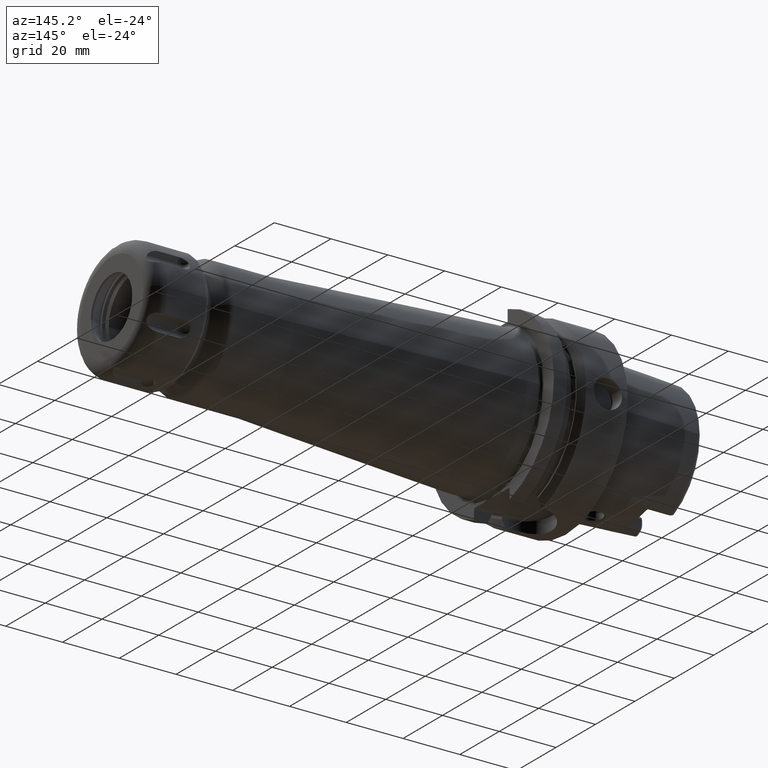
[diagram: clean part render]
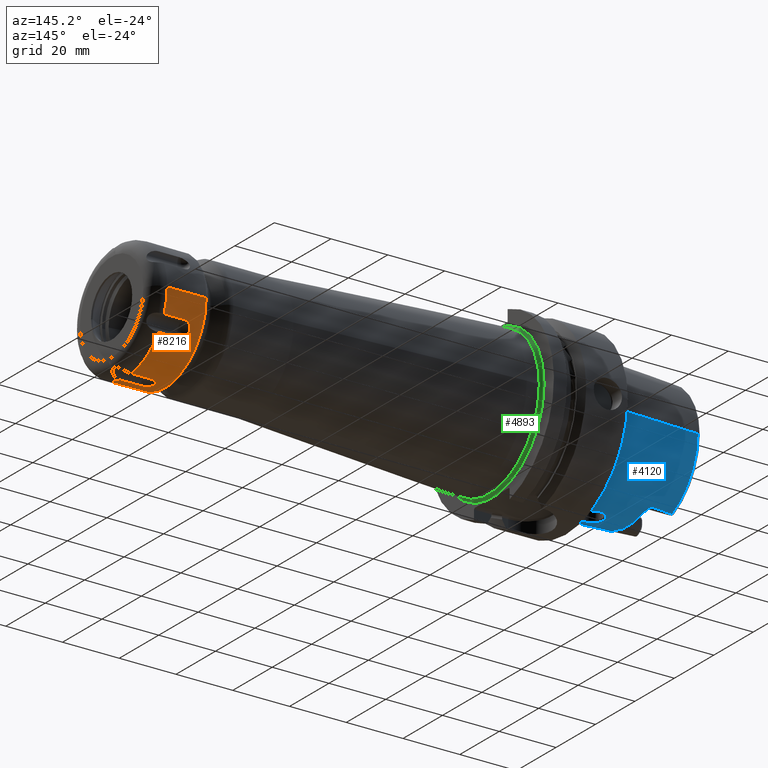
[diagram: same view with three faces highlighted in distinct colors, each labeled with its STEP entity id]
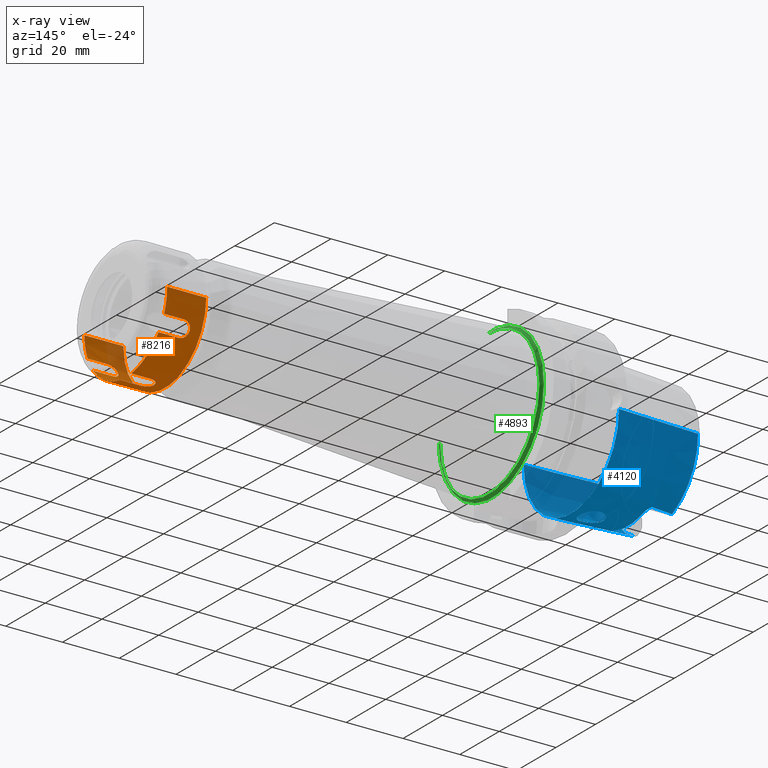
[diagram: x-ray of the same camera — body ghosted, the three highlighted faces saturated]
A machine part, auxiliary view with three faces highlighted in distinct colors.
The next image is the same camera in x-ray (body ghosted, the three faces saturated) — at least one of them is partly hidden behind the body in this view.
Their STEP definitions:

[orange] entity #8216 — the highlighted cylindrical surface (partial cylindrical patch) has radius 21 mm, axis along (-1, 0, 0).
#6834=CARTESIAN_POINT('',(1.25E0,0.E0,0.E0));
#6835=DIRECTION('',(-1.E0,0.E0,0.E0));
#6836=DIRECTION('',(0.E0,1.E0,0.E0));
#6837=AXIS2_PLACEMENT_3D('',#6834,#6835,#6836);
#6867=DIRECTION('',(-1.E0,0.E0,0.E0));
#6868=VECTOR('',#6867,1.375E1);
#6869=CARTESIAN_POINT('',(1.5E1,-2.1E1,0.E0));
#6870=LINE('',#6869,#6868);
#6871=DIRECTION('',(-1.E0,0.E0,0.E0));
#6872=VECTOR('',#6871,1.375E1);
#6873=CARTESIAN_POINT('',(1.5E1,2.1E1,0.E0));
#6874=LINE('',#6873,#6872);
#7050=DIRECTION('',(-1.E0,0.E0,0.E0));
#7051=VECTOR('',#7050,7.E0);
#7052=CARTESIAN_POINT('',(1.5E1,-1.941540806421E1,-8.002620177191E0));
#7053=LINE('',#7052,#7051);
#7054=DIRECTION('',(-1.E0,0.E0,0.E0));
#7055=VECTOR('',#7054,7.E0);
#7056=CARTESIAN_POINT('',(1.5E1,-1.663817640239E1,-1.281292651985E1));
#7057=LINE('',#7056,#7055);
#7058=CARTESIAN_POINT('',(1.5E1,0.E0,0.E0));
#7059=DIRECTION('',(-1.E0,0.E0,0.E0));
#7060=DIRECTION('',(0.E0,-1.322491267532E-1,-9.912165093828E-1));
#7061=AXIS2_PLACEMENT_3D('',#7058,#7059,#7060);
#7063=DIRECTION('',(-1.E0,0.E0,0.E0));
#7064=VECTOR('',#7063,7.E0);
#7065=CARTESIAN_POINT('',(1.5E1,-2.777231661817E0,-2.081554669704E1));
#7066=LINE('',#7065,#7064);
#7067=DIRECTION('',(-1.E0,0.E0,0.E0));
#7068=VECTOR('',#7067,7.E0);
#7069=CARTESIAN_POINT('',(1.5E1,2.777231661817E0,-2.081554669704E1));
#7070=LINE('',#7069,#7068);
#7071=CARTESIAN_POINT('',(1.5E1,0.E0,0.E0));
#7072=DIRECTION('',(-1.E0,0.E0,0.E0));
#7073=DIRECTION('',(0.E0,7.922941143994E-1,-6.101393580880E-1));
#7074=AXIS2_PLACEMENT_3D('',#7071,#7072,#7073);
#7076=DIRECTION('',(-1.E0,0.E0,0.E0));
#7077=VECTOR('',#7076,7.E0);
#7078=CARTESIAN_POINT('',(1.5E1,1.663817640239E1,-1.281292651985E1));
#7079=LINE('',#7078,#7077);
#7080=DIRECTION('',(-1.E0,0.E0,0.E0));
#7081=VECTOR('',#7080,7.E0);
#7082=CARTESIAN_POINT('',(1.5E1,1.941540806421E1,-8.002620177191E0));
#7083=LINE('',#7082,#7081);
#7084=CARTESIAN_POINT('',(1.5E1,0.E0,0.E0));
#7085=DIRECTION('',(-1.E0,0.E0,0.E0));
#7086=DIRECTION('',(0.E0,1.E0,0.E0));
#7087=AXIS2_PLACEMENT_3D('',#7084,#7085,#7086);
#7089=CARTESIAN_POINT('',(1.5E1,0.E0,0.E0));
#7090=DIRECTION('',(-1.E0,0.E0,0.E0));
#7091=DIRECTION('',(0.E0,-9.245432411526E-1,-3.810771512948E-1));
#7092=AXIS2_PLACEMENT_3D('',#7089,#7090,#7091);
#7099=CARTESIAN_POINT('',(8.E0,-1.663817640239E1,-1.281292651985E1));
#7100=CARTESIAN_POINT('',(7.714583305605E0,-1.663817640239E1,
-1.281292651985E1));
#7101=CARTESIAN_POINT('',(7.192143563434E0,-1.668830297763E1,
-1.274810774210E1));
#7102=CARTESIAN_POINT('',(6.546807345939E0,-1.685742201408E1,
-1.252453094965E1));
#7103=CARTESIAN_POINT('',(6.054802938562E0,-1.707273175939E1,
-1.222998054114E1));
#7104=CARTESIAN_POINT('',(5.693341448146E0,-1.730396217612E1,
-1.190078479590E1));
#7105=CARTESIAN_POINT('',(5.442477499872E0,-1.753199674627E1,
-1.156217247130E1));
#7106=CARTESIAN_POINT('',(5.280954622590E0,-1.774644318742E1,
-1.122995874814E1));
#7107=CARTESIAN_POINT('',(5.192134284114E0,-1.793586716112E1,
-1.092439610791E1));
#7108=CARTESIAN_POINT('',(5.152681426050E0,-1.810379712254E1,
-1.064374469399E1));
#7109=CARTESIAN_POINT('',(5.153099055368E0,-1.827316404767E1,
-1.035028364925E1));
#7110=CARTESIAN_POINT('',(5.193548204491E0,-1.843241748974E1,
-1.006398228667E1));
#7111=CARTESIAN_POINT('',(5.283274229354E0,-1.860187386136E1,
-9.747731544451E0));
#7112=CARTESIAN_POINT('',(5.445580918541E0,-1.878179790701E1,
-9.396726830567E0));
#7113=CARTESIAN_POINT('',(5.696779314112E0,-1.896026994103E1,
-9.031252239954E0));
#7114=CARTESIAN_POINT('',(6.058171132220E0,-1.912904285901E1,
-8.667751895945E0));
#7115=CARTESIAN_POINT('',(6.549574774111E0,-1.927584277882E1,
-8.335354274192E0));
#7116=CARTESIAN_POINT('',(7.193612768876E0,-1.938444317983E1,
-8.078178130094E0));
#7117=CARTESIAN_POINT('',(7.715108165173E0,-1.941540806421E1,
-8.002620177191E0));
#7118=CARTESIAN_POINT('',(8.E0,-1.941540806421E1,-8.002620177191E0));
#7143=CARTESIAN_POINT('',(8.E0,2.777231661817E0,-2.081554669704E1));
#7144=CARTESIAN_POINT('',(7.713662407976E0,2.777231661817E0,-2.081554669704E1));
#7145=CARTESIAN_POINT('',(7.189909163737E0,2.695438478365E0,-2.082662722685E1));
#7146=CARTESIAN_POINT('',(6.545266369655E0,2.416933918441E0,-2.086132910695E1));
#7147=CARTESIAN_POINT('',(6.053188385415E0,2.053714854453E0,-2.090055057382E1));
#7148=CARTESIAN_POINT('',(5.691666812557E0,1.652236150032E0,-2.093623980800E1));
#7149=CARTESIAN_POINT('',(5.440921343617E0,1.244147798999E0,-2.096442280320E1));
#7150=CARTESIAN_POINT('',(5.279713784226E0,8.485345660924E-1,
-2.098400447999E1));
#7151=CARTESIAN_POINT('',(5.191310865890E0,4.883589188883E-1,
-2.099522048576E1));
#7152=CARTESIAN_POINT('',(5.152463857373E0,1.619241904040E-1,
-2.100024895100E1));
#7153=CARTESIAN_POINT('',(5.153352970432E0,-1.769125356115E-1,
-2.100013304002E1));
#7154=CARTESIAN_POINT('',(5.194242567044E0,-5.042908363847E-1,
-2.099484367307E1));
#7155=CARTESIAN_POINT('',(5.284599976748E0,-8.631977389131E-1,
-2.098339584655E1));
#7156=CARTESIAN_POINT('',(5.447533241111E0,-1.256871962063E0,
-2.096364849057E1));
#7157=CARTESIAN_POINT('',(5.699249222549E0,-1.662072581669E0,
-2.093544078779E1));
#7158=CARTESIAN_POINT('',(6.060877722500E0,-2.060407693505E0,
-2.089987254220E1));
#7159=CARTESIAN_POINT('',(6.552100609835E0,-2.420624148758E0,
-2.086088616490E1));
#7160=CARTESIAN_POINT('',(7.194942937973E0,-2.696562424964E0,
-2.082647454950E1));
#7161=CARTESIAN_POINT('',(7.715594987669E0,-2.777231661817E0,
-2.081554669704E1));
#7162=CARTESIAN_POINT('',(8.E0,-2.777231661817E0,-2.081554669704E1));
#7187=CARTESIAN_POINT('',(8.E0,1.941540806421E1,-8.002620177191E0));
#7188=CARTESIAN_POINT('',(7.713572922658E0,1.941540806421E1,-8.002620177191E0));
#7189=CARTESIAN_POINT('',(7.189666296858E0,1.938409112840E1,-8.079036053747E0));
#7190=CARTESIAN_POINT('',(6.544777832993E0,1.927480496396E1,-8.337779258824E0));
#7191=CARTESIAN_POINT('',(6.052712802278E0,1.912708846113E1,-8.672097759418E0));
#7192=CARTESIAN_POINT('',(5.691284416322E0,1.895721237694E1,-9.037706050068E0));
#7193=CARTESIAN_POINT('',(5.440670364586E0,1.877756964477E1,-9.405200319201E0));
#7194=CARTESIAN_POINT('',(5.279587362947E0,1.859675418770E1,-9.757517579175E0));
#7195=CARTESIAN_POINT('',(5.191276123419E0,1.842646227369E1,-1.007488110629E1));
#7196=CARTESIAN_POINT('',(5.152462673233E0,1.826765771439E1,-1.035998691209E1));
#7197=CARTESIAN_POINT('',(5.153355632364E0,1.809820878830E1,-1.065324823959E1));
#7198=CARTESIAN_POINT('',(5.194221992970E0,1.792999806580E1,-1.093402505740E1));
#7199=CARTESIAN_POINT('',(5.284498191224E0,1.774073299543E1,-1.123896635518E1));
#7200=CARTESIAN_POINT('',(5.447317801761E0,1.752685369365E1,-1.156994667318E1));
#7201=CARTESIAN_POINT('',(5.698894094622E0,1.729986084275E1,-1.190671983321E1));
#7202=CARTESIAN_POINT('',(6.060385032134E0,1.706987180093E1,-1.223394697615E1));
#7203=CARTESIAN_POINT('',(6.551605632999E0,1.685591873376E1,-1.252653286965E1));
#7204=CARTESIAN_POINT('',(7.194289469945E0,1.668807982404E1,-1.274839234248E1));
#7205=CARTESIAN_POINT('',(7.715326436797E0,1.663817640239E1,-1.281292651985E1));
#7206=CARTESIAN_POINT('',(8.E0,1.663817640239E1,-1.281292651985E1));
#7819=CARTESIAN_POINT('',(1.25E0,2.1E1,0.E0));
#7821=VERTEX_POINT('',#7819);
#7824=CARTESIAN_POINT('',(1.5E1,2.1E1,0.E0));
#7826=VERTEX_POINT('',#7824);
#7827=CARTESIAN_POINT('',(1.25E0,-2.1E1,0.E0));
#7829=VERTEX_POINT('',#7827);
#7832=CARTESIAN_POINT('',(1.5E1,-2.1E1,0.E0));
#7834=VERTEX_POINT('',#7832);
#7835=CARTESIAN_POINT('',(1.5E1,-2.777231661817E0,-2.081554669704E1));
#7836=CARTESIAN_POINT('',(8.E0,-2.777231661817E0,-2.081554669704E1));
#7837=VERTEX_POINT('',#7835);
#7838=VERTEX_POINT('',#7836);
#7839=CARTESIAN_POINT('',(1.5E1,2.777231661817E0,-2.081554669704E1));
#7840=CARTESIAN_POINT('',(8.E0,2.777231661817E0,-2.081554669704E1));
#7841=VERTEX_POINT('',#7839);
#7842=VERTEX_POINT('',#7840);
#7843=CARTESIAN_POINT('',(1.5E1,1.663817640239E1,-1.281292651985E1));
#7844=CARTESIAN_POINT('',(8.E0,1.663817640239E1,-1.281292651985E1));
#7845=VERTEX_POINT('',#7843);
#7846=VERTEX_POINT('',#7844);
#7847=CARTESIAN_POINT('',(1.5E1,1.941540806421E1,-8.002620177191E0));
#7848=CARTESIAN_POINT('',(8.E0,1.941540806421E1,-8.002620177191E0));
#7849=VERTEX_POINT('',#7847);
#7850=VERTEX_POINT('',#7848);
#7875=CARTESIAN_POINT('',(1.5E1,-1.941540806421E1,-8.002620177191E0));
#7876=CARTESIAN_POINT('',(8.E0,-1.941540806421E1,-8.002620177191E0));
#7877=VERTEX_POINT('',#7875);
#7878=VERTEX_POINT('',#7876);
#7879=CARTESIAN_POINT('',(1.5E1,-1.663817640239E1,-1.281292651985E1));
#7880=CARTESIAN_POINT('',(8.E0,-1.663817640239E1,-1.281292651985E1));
#7881=VERTEX_POINT('',#7879);
#7882=VERTEX_POINT('',#7880);
#8186=CARTESIAN_POINT('',(2.1E1,0.E0,0.E0));
#8187=DIRECTION('',(-1.E0,0.E0,0.E0));
#8188=DIRECTION('',(0.E0,1.E0,0.E0));
#8189=AXIS2_PLACEMENT_3D('',#8186,#8187,#8188);
#8190=CYLINDRICAL_SURFACE('',#8189,2.1E1);
#8191=ORIENTED_EDGE('',*,*,#8181,.T.);
#8193=ORIENTED_EDGE('',*,*,#8192,.F.);
#8194=ORIENTED_EDGE('',*,*,#8177,.F.);
#8195=ORIENTED_EDGE('',*,*,#8166,.F.);
#8197=ORIENTED_EDGE('',*,*,#8196,.T.);
#8199=ORIENTED_EDGE('',*,*,#8198,.F.);
#8201=ORIENTED_EDGE('',*,*,#8200,.F.);
#8202=ORIENTED_EDGE('',*,*,#8162,.F.);
#8204=ORIENTED_EDGE('',*,*,#8203,.T.);
#8206=ORIENTED_EDGE('',*,*,#8205,.F.);
#8208=ORIENTED_EDGE('',*,*,#8207,.F.);
#8209=ORIENTED_EDGE('',*,*,#8158,.F.);
#8210=ORIENTED_EDGE('',*,*,#8039,.T.);
#8211=ORIENTED_EDGE('',*,*,#8004,.T.);
#8212=ORIENTED_EDGE('',*,*,#8036,.F.);
#8213=ORIENTED_EDGE('',*,*,#8152,.F.);
#8214=EDGE_LOOP('',(#8191,#8193,#8194,#8195,#8197,#8199,#8201,#8202,#8204,#8206,
#8208,#8209,#8210,#8211,#8212,#8213));
#8215=FACE_OUTER_BOUND('',#8214,.F.);
#8216=ADVANCED_FACE('',(#8215),#8190,.T.);
#6838=CIRCLE('',#6837,2.1E1);
#7062=CIRCLE('',#7061,2.1E1);
#7075=CIRCLE('',#7074,2.1E1);
#7088=CIRCLE('',#7087,2.1E1);
#7093=CIRCLE('',#7092,2.1E1);
#7119=B_SPLINE_CURVE_WITH_KNOTS('',3,(#7099,#7100,#7101,#7102,#7103,#7104,#7105,
#7106,#7107,#7108,#7109,#7110,#7111,#7112,#7113,#7114,#7115,#7116,#7117,#7118),
.UNSPECIFIED.,.F.,.F.,(4,1,1,1,1,1,1,1,1,1,1,1,1,1,1,1,1,4),(0.E0,
5.882352941176E-2,1.176470588235E-1,1.764705882353E-1,2.352941176471E-1,
2.941176470588E-1,3.529411764706E-1,4.117647058824E-1,4.705882352941E-1,
5.294117647059E-1,5.882352941176E-1,6.470588235294E-1,7.058823529412E-1,
7.647058823529E-1,8.235294117647E-1,8.823529411765E-1,9.411764705882E-1,1.E0),
.UNSPECIFIED.);
#7163=B_SPLINE_CURVE_WITH_KNOTS('',3,(#7143,#7144,#7145,#7146,#7147,#7148,#7149,
#7150,#7151,#7152,#7153,#7154,#7155,#7156,#7157,#7158,#7159,#7160,#7161,#7162),
.UNSPECIFIED.,.F.,.F.,(4,1,1,1,1,1,1,1,1,1,1,1,1,1,1,1,1,4),(0.E0,
5.882352941176E-2,1.176470588235E-1,1.764705882353E-1,2.352941176471E-1,
2.941176470588E-1,3.529411764706E-1,4.117647058824E-1,4.705882352941E-1,
5.294117647059E-1,5.882352941176E-1,6.470588235294E-1,7.058823529412E-1,
7.647058823529E-1,8.235294117647E-1,8.823529411765E-1,9.411764705882E-1,1.E0),
.UNSPECIFIED.);
#7207=B_SPLINE_CURVE_WITH_KNOTS('',3,(#7187,#7188,#7189,#7190,#7191,#7192,#7193,
#7194,#7195,#7196,#7197,#7198,#7199,#7200,#7201,#7202,#7203,#7204,#7205,#7206),
.UNSPECIFIED.,.F.,.F.,(4,1,1,1,1,1,1,1,1,1,1,1,1,1,1,1,1,4),(0.E0,
5.882352941176E-2,1.176470588235E-1,1.764705882353E-1,2.352941176471E-1,
2.941176470588E-1,3.529411764706E-1,4.117647058824E-1,4.705882352941E-1,
5.294117647059E-1,5.882352941176E-1,6.470588235294E-1,7.058823529412E-1,
7.647058823529E-1,8.235294117647E-1,8.823529411765E-1,9.411764705882E-1,1.E0),
.UNSPECIFIED.);
#8004=EDGE_CURVE('',#7821,#7829,#6838,.T.);
#8036=EDGE_CURVE('',#7834,#7829,#6870,.T.);
#8039=EDGE_CURVE('',#7826,#7821,#6874,.T.);
#8152=EDGE_CURVE('',#7877,#7834,#7093,.T.);
#8158=EDGE_CURVE('',#7826,#7849,#7088,.T.);
#8162=EDGE_CURVE('',#7845,#7841,#7075,.T.);
#8166=EDGE_CURVE('',#7837,#7881,#7062,.T.);
#8177=EDGE_CURVE('',#7881,#7882,#7057,.T.);
#8181=EDGE_CURVE('',#7877,#7878,#7053,.T.);
#8192=EDGE_CURVE('',#7882,#7878,#7119,.T.);
#8196=EDGE_CURVE('',#7837,#7838,#7066,.T.);
#8198=EDGE_CURVE('',#7842,#7838,#7163,.T.);
#8200=EDGE_CURVE('',#7841,#7842,#7070,.T.);
#8203=EDGE_CURVE('',#7845,#7846,#7079,.T.);
#8205=EDGE_CURVE('',#7850,#7846,#7207,.T.);
#8207=EDGE_CURVE('',#7849,#7850,#7083,.T.);

[blue] entity #4120 — the highlighted conical surface has half-angle 2.868 deg.
#172=CARTESIAN_POINT('',(-3.086004306431E1,9.562027931336E0,-2.067E1));
#180=CARTESIAN_POINT('',(-3.086004306431E1,0.E0,0.E0));
#181=DIRECTION('',(-1.E0,0.E0,0.E0));
#182=DIRECTION('',(0.E0,1.E0,0.E0));
#183=AXIS2_PLACEMENT_3D('',#180,#181,#182);
#266=CARTESIAN_POINT('',(-3.086004306431E1,0.E0,0.E0));
#267=DIRECTION('',(-1.E0,0.E0,0.E0));
#268=DIRECTION('',(0.E0,-4.198553792210E-1,-9.075910205259E-1));
#269=AXIS2_PLACEMENT_3D('',#266,#267,#268);
#715=CARTESIAN_POINT('',(-2.35E1,-1.040978349090E1,-2.067E1));
#716=CARTESIAN_POINT('',(-2.344355022851E1,-1.041607090076E1,-2.067E1));
#717=CARTESIAN_POINT('',(-2.332956993861E1,-1.041630964332E1,
-2.067627649687E1));
#718=CARTESIAN_POINT('',(-2.315431779142E1,-1.037517685704E1,
-2.070680447798E1));
#719=CARTESIAN_POINT('',(-2.298610382819E1,-1.029332142770E1,
-2.075709446100E1));
#720=CARTESIAN_POINT('',(-2.282168004898E1,-1.016791062235E1,
-2.082809580409E1));
#721=CARTESIAN_POINT('',(-2.266724538325E1,-9.999284585470E0,
-2.091827708343E1));
#722=CARTESIAN_POINT('',(-2.252949651780E1,-9.795860386621E0,
-2.102205159226E1));
#723=CARTESIAN_POINT('',(-2.240609239614E1,-9.556317791147E0,
-2.113897791639E1));
#724=CARTESIAN_POINT('',(-2.233295118151E1,-9.369771312934E0,
-2.122596447282E1));
#725=CARTESIAN_POINT('',(-2.229902715702E1,-9.27E0,-2.127129858661E1));
#732=CARTESIAN_POINT('',(-2.229902715702E1,-9.27E0,-2.127129858661E1));
#733=CARTESIAN_POINT('',(-2.223399395074E1,-9.078735889296E0,
-2.135820522042E1));
#734=CARTESIAN_POINT('',(-2.212138063131E1,-8.709703982970E0,
-2.151897497246E1));
#735=CARTESIAN_POINT('',(-2.202143095510E1,-8.195867731278E0,
-2.172483116732E1));
#736=CARTESIAN_POINT('',(-2.2E1,-7.876905772307E0,-2.184209600703E1));
#737=CARTESIAN_POINT('',(-2.2E1,-7.723914364163E0,-2.189606426911E1));
#744=CARTESIAN_POINT('',(-3.086004306431E1,9.562027931336E0,-2.067E1));
#745=CARTESIAN_POINT('',(-3.006933576531E1,9.656377942908E0,-2.067E1));
#746=CARTESIAN_POINT('',(-2.846987211493E1,9.844931102331E0,-2.067E1));
#747=CARTESIAN_POINT('',(-2.601704943476E1,1.012739619931E1,-2.067E1));
#748=CARTESIAN_POINT('',(-2.434508424921E1,1.031565749353E1,-2.067E1));
#749=CARTESIAN_POINT('',(-2.35E1,1.040978349090E1,-2.067E1));
#751=CARTESIAN_POINT('',(-2.2E1,0.E0,0.E0));
#752=DIRECTION('',(1.E0,0.E0,0.E0));
#753=DIRECTION('',(0.E0,-3.326627708379E-1,-9.430458530201E-1));
#754=AXIS2_PLACEMENT_3D('',#751,#752,#753);
#756=CARTESIAN_POINT('',(-2.35E1,-1.040978349090E1,-2.067E1));
#757=CARTESIAN_POINT('',(-2.434499363207E1,-1.031566758652E1,-2.067E1));
#758=CARTESIAN_POINT('',(-2.601683809497E1,-1.012742018211E1,-2.067E1));
#759=CARTESIAN_POINT('',(-2.846966522954E1,-9.844955281726E0,-2.067E1));
#760=CARTESIAN_POINT('',(-3.006924714753E1,-9.656388517097E0,-2.067E1));
#761=CARTESIAN_POINT('',(-3.086004306431E1,-9.562027931336E0,-2.067E1));
#763=DIRECTION('',(-9.987474205320E-1,5.003588692862E-2,0.E0));
#764=VECTOR('',#763,2.889623789861E1);
#765=CARTESIAN_POINT('',(-2.E0,-2.422042414966E1,0.E0));
#766=LINE('',#765,#764);
#767=CARTESIAN_POINT('',(-2.E0,0.E0,0.E0));
#768=DIRECTION('',(1.E0,0.E0,0.E0));
#769=DIRECTION('',(0.E0,-1.E0,0.E0));
#770=AXIS2_PLACEMENT_3D('',#767,#768,#769);
#772=DIRECTION('',(-9.987474205320E-1,-5.003588692862E-2,0.E0));
#773=VECTOR('',#772,2.889623789861E1);
#774=CARTESIAN_POINT('',(-2.E0,2.422042414966E1,0.E0));
#775=LINE('',#774,#773);
#776=CARTESIAN_POINT('',(-4.750586214018E0,5.673461659763E-9,
-2.408258339423E1));
#777=CARTESIAN_POINT('',(-4.750477437961E0,2.111411076152E-1,
-2.408258884376E1));
#778=CARTESIAN_POINT('',(-4.781495656806E0,6.343409338442E-1,
-2.407562144168E1));
#779=CARTESIAN_POINT('',(-4.930078657106E0,1.283914855647E0,-2.404224907910E1));
#780=CARTESIAN_POINT('',(-5.182634392381E0,1.908800454949E0,-2.398769888200E1));
#781=CARTESIAN_POINT('',(-5.529831450162E0,2.484539069761E0,-2.391697022480E1));
#782=CARTESIAN_POINT('',(-5.960551469368E0,2.995586150016E0,-2.383614077825E1));
#783=CARTESIAN_POINT('',(-6.473793439058E0,3.438507792172E0,-2.374982588457E1));
#784=CARTESIAN_POINT('',(-7.048787066123E0,3.792204015972E0,-2.366626747645E1));
#785=CARTESIAN_POINT('',(-7.671452269175E0,4.050490920343E0,-2.359141310307E1));
#786=CARTESIAN_POINT('',(-8.326498075054E0,4.207389863949E0,-2.353035449331E1));
#787=CARTESIAN_POINT('',(-8.996688113385E0,4.259622037115E0,-2.348674331493E1));
#788=CARTESIAN_POINT('',(-9.664449704733E0,4.206963769363E0,-2.346231724919E1));
#789=CARTESIAN_POINT('',(-1.031524077611E1,4.051442761029E0,-2.345681057565E1));
#790=CARTESIAN_POINT('',(-1.093485325951E1,3.796098039719E0,-2.346839797168E1));
#791=CARTESIAN_POINT('',(-1.150677686976E1,3.447081430360E0,-2.349368587605E1));
#792=CARTESIAN_POINT('',(-1.201610511114E1,3.013688514077E0,-2.352797212386E1));
#793=CARTESIAN_POINT('',(-1.245275273991E1,2.504280742997E0,-2.356616658718E1));
#794=CARTESIAN_POINT('',(-1.280634613041E1,1.927107192660E0,-2.360307496745E1));
#795=CARTESIAN_POINT('',(-1.306351718265E1,1.301776136825E0,-2.363325793045E1));
#796=CARTESIAN_POINT('',(-1.321667495617E1,6.483699009348E-1,
-2.365261938940E1));
#797=CARTESIAN_POINT('',(-1.324953338827E1,2.167159282651E-1,
-2.365680321669E1));
#798=CARTESIAN_POINT('',(-1.324940828071E1,6.149879737228E-9,
-2.365680948441E1));
#800=CARTESIAN_POINT('',(-1.324940828071E1,6.149879737228E-9,
-2.365680948441E1));
#801=CARTESIAN_POINT('',(-1.324953102801E1,-2.137481481882E-1,
-2.365680333493E1));
#802=CARTESIAN_POINT('',(-1.321763433537E1,-6.412975014817E-1,
-2.365274945467E1));
#803=CARTESIAN_POINT('',(-1.306535183772E1,-1.296633810944E0,
-2.363348136753E1));
#804=CARTESIAN_POINT('',(-1.280777805154E1,-1.924231879999E0,
-2.360323471178E1));
#805=CARTESIAN_POINT('',(-1.245640925213E1,-2.498853587660E0,
-2.356653312143E1));
#806=CARTESIAN_POINT('',(-1.202279775894E1,-3.007095564138E0,
-2.352849478770E1));
#807=CARTESIAN_POINT('',(-1.151012912941E1,-3.444950000041E0,
-2.349384632376E1));
#808=CARTESIAN_POINT('',(-1.093833543731E1,-3.794219313343E0,
-2.346852201482E1));
#809=CARTESIAN_POINT('',(-1.031975853695E1,-4.049996047184E0,
-2.345683414568E1));
#810=CARTESIAN_POINT('',(-9.668027880621E0,-4.206485188960E0,
-2.346222186835E1));
#811=CARTESIAN_POINT('',(-8.998732245580E0,-4.259676561364E0,
-2.348662929012E1));
#812=CARTESIAN_POINT('',(-8.327946517995E0,-4.207637743620E0,
-2.353023608986E1));
#813=CARTESIAN_POINT('',(-7.672280726344E0,-4.050816496641E0,
-2.359131552533E1));
#814=CARTESIAN_POINT('',(-7.048298445734E0,-3.792045808672E0,
-2.366632099982E1));
#815=CARTESIAN_POINT('',(-6.472887987830E0,-3.437795786313E0,
-2.374997505426E1));
#816=CARTESIAN_POINT('',(-5.960766318899E0,-2.995689730409E0,
-2.383610614678E1));
#817=CARTESIAN_POINT('',(-5.531187494687E0,-2.486290041474E0,
-2.391671147691E1));
#818=CARTESIAN_POINT('',(-5.183401261358E0,-1.910526594455E0,
-2.398753185570E1));
#819=CARTESIAN_POINT('',(-4.929997199649E0,-1.284003067748E0,
-2.404226458263E1));
#820=CARTESIAN_POINT('',(-4.781340780308E0,-6.332209723674E-1,
-2.407566103624E1));
#821=CARTESIAN_POINT('',(-4.750402434471E0,-2.105981632370E-1,
-2.408259260134E1));
#822=CARTESIAN_POINT('',(-4.750586214018E0,5.673461659763E-9,
-2.408258339423E1));
#832=CARTESIAN_POINT('',(-2.229902715702E1,9.27E0,-2.127129858661E1));
#833=CARTESIAN_POINT('',(-2.233311157770E1,9.370243041714E0,-2.122575012858E1));
#834=CARTESIAN_POINT('',(-2.240658425841E1,9.557497215840E0,-2.113842140416E1));
#835=CARTESIAN_POINT('',(-2.253041527230E1,9.797438074146E0,-2.102126542838E1));
#836=CARTESIAN_POINT('',(-2.266830373788E1,1.000064778809E1,-2.091756656395E1));
#837=CARTESIAN_POINT('',(-2.282373330426E1,1.017005110462E1,-2.082694270310E1));
#838=CARTESIAN_POINT('',(-2.299261366970E1,1.029790438197E1,-2.075446014923E1));
#839=CARTESIAN_POINT('',(-2.316533457542E1,1.037882348161E1,-2.070435505978E1));
#840=CARTESIAN_POINT('',(-2.333269177476E1,1.041609135758E1,-2.067621009348E1));
#841=CARTESIAN_POINT('',(-2.344467268621E1,1.041594588074E1,-2.067E1));
#842=CARTESIAN_POINT('',(-2.35E1,1.040978349090E1,-2.067E1));
#844=CARTESIAN_POINT('',(-2.2E1,7.723914364163E0,-2.189606426911E1));
#845=CARTESIAN_POINT('',(-2.2E1,7.876901135824E0,-2.184209764257E1));
#846=CARTESIAN_POINT('',(-2.202143124879E1,8.195856320393E0,-2.172483505793E1));
#847=CARTESIAN_POINT('',(-2.212136508173E1,8.709641843939E0,-2.151900085185E1));
#848=CARTESIAN_POINT('',(-2.223398514363E1,9.078709987396E0,-2.135821698973E1));
#849=CARTESIAN_POINT('',(-2.229902715702E1,9.27E0,-2.127129858661E1));
#2803=CARTESIAN_POINT('',(-2.E0,2.422042414966E1,0.E0));
#2804=CARTESIAN_POINT('',(-2.E0,-2.422042414966E1,0.E0));
#2805=VERTEX_POINT('',#2803);
#2806=VERTEX_POINT('',#2804);
#2807=CARTESIAN_POINT('',(-3.086004306431E1,2.277457525750E1,0.E0));
#2808=VERTEX_POINT('',#2807);
#2809=CARTESIAN_POINT('',(-3.086004306431E1,-2.277457525750E1,0.E0));
#2810=VERTEX_POINT('',#2809);
#2928=VERTEX_POINT('',#172);
#2930=CARTESIAN_POINT('',(-3.086004306431E1,-9.562027931336E0,-2.067E1));
#2931=VERTEX_POINT('',#2930);
#2934=CARTESIAN_POINT('',(-2.229902715702E1,-9.27E0,-2.127129858661E1));
#2936=VERTEX_POINT('',#2934);
#2937=VERTEX_POINT('',#737);
#2938=VERTEX_POINT('',#844);
#2939=VERTEX_POINT('',#849);
#2950=CARTESIAN_POINT('',(-2.35E1,-1.040978349090E1,-2.067E1));
#2951=VERTEX_POINT('',#2950);
#2952=CARTESIAN_POINT('',(-2.35E1,1.040978349090E1,-2.067E1));
#2953=VERTEX_POINT('',#2952);
#3018=VERTEX_POINT('',#776);
#3019=VERTEX_POINT('',#798);
#4090=CARTESIAN_POINT('',(-1.643002153216E1,0.E0,0.E0));
#4091=DIRECTION('',(1.E0,0.E0,0.E0));
#4092=DIRECTION('',(0.E0,-1.E0,0.E0));
#4093=AXIS2_PLACEMENT_3D('',#4090,#4091,#4092);
#4094=CONICAL_SURFACE('',#4093,2.349749970358E1,2.868042729042E0);
#4096=ORIENTED_EDGE('',*,*,#4095,.T.);
#4098=ORIENTED_EDGE('',*,*,#4097,.F.);
#4100=ORIENTED_EDGE('',*,*,#4099,.F.);
#4102=ORIENTED_EDGE('',*,*,#4101,.F.);
#4103=ORIENTED_EDGE('',*,*,#4080,.F.);
#4104=ORIENTED_EDGE('',*,*,#4069,.F.);
#4105=ORIENTED_EDGE('',*,*,#4056,.T.);
#4106=ORIENTED_EDGE('',*,*,#3459,.T.);
#4107=ORIENTED_EDGE('',*,*,#3317,.F.);
#4109=ORIENTED_EDGE('',*,*,#4108,.T.);
#4110=ORIENTED_EDGE('',*,*,#3313,.T.);
#4111=ORIENTED_EDGE('',*,*,#3431,.T.);
#4112=EDGE_LOOP('',(#4096,#4098,#4100,#4102,#4103,#4104,#4105,#4106,#4107,#4109,
#4110,#4111));
#4113=FACE_OUTER_BOUND('',#4112,.F.);
#4115=ORIENTED_EDGE('',*,*,#4114,.F.);
#4117=ORIENTED_EDGE('',*,*,#4116,.F.);
#4118=EDGE_LOOP('',(#4115,#4117));
#4119=FACE_BOUND('',#4118,.F.);
#4120=ADVANCED_FACE('',(#4113,#4119),#4094,.T.);
#184=CIRCLE('',#183,2.277457525750E1);
#270=CIRCLE('',#269,2.277457525750E1);
#726=B_SPLINE_CURVE_WITH_KNOTS('',3,(#715,#716,#717,#718,#719,#720,#721,#722,
#723,#724,#725),.UNSPECIFIED.,.F.,.F.,(4,1,1,1,1,1,1,1,4),(0.E0,1.25E-1,2.5E-1,
3.75E-1,5.E-1,6.25E-1,7.5E-1,8.75E-1,1.E0),.UNSPECIFIED.);
#738=B_SPLINE_CURVE_WITH_KNOTS('',3,(#732,#733,#734,#735,#736,#737),
.UNSPECIFIED.,.F.,.F.,(4,1,1,4),(0.E0,3.333333333333E-1,6.666666666667E-1,1.E0),
.UNSPECIFIED.);
#750=B_SPLINE_CURVE_WITH_KNOTS('',3,(#744,#745,#746,#747,#748,#749),
.UNSPECIFIED.,.F.,.F.,(4,1,1,4),(0.E0,3.333333333333E-1,6.666666666667E-1,1.E0),
.UNSPECIFIED.);
#755=CIRCLE('',#754,2.321845136054E1);
#762=B_SPLINE_CURVE_WITH_KNOTS('',3,(#756,#757,#758,#759,#760,#761),
.UNSPECIFIED.,.F.,.F.,(4,1,1,4),(0.E0,3.333333333333E-1,6.666666666667E-1,1.E0),
.UNSPECIFIED.);
#771=CIRCLE('',#770,2.422042414966E1);
#799=B_SPLINE_CURVE_WITH_KNOTS('',3,(#776,#777,#778,#779,#780,#781,#782,#783,
#784,#785,#786,#787,#788,#789,#790,#791,#792,#793,#794,#795,#796,#797,#798),
.UNSPECIFIED.,.F.,.F.,(4,1,1,1,1,1,1,1,1,1,1,1,1,1,1,1,1,1,1,1,4),(0.E0,5.E-2,
1.E-1,1.5E-1,2.E-1,2.5E-1,3.E-1,3.5E-1,4.E-1,4.5E-1,5.E-1,5.5E-1,6.E-1,6.5E-1,
7.E-1,7.5E-1,8.E-1,8.5E-1,9.E-1,9.5E-1,1.E0),.UNSPECIFIED.);
#823=B_SPLINE_CURVE_WITH_KNOTS('',3,(#800,#801,#802,#803,#804,#805,#806,#807,
#808,#809,#810,#811,#812,#813,#814,#815,#816,#817,#818,#819,#820,#821,#822),
.UNSPECIFIED.,.F.,.F.,(4,1,1,1,1,1,1,1,1,1,1,1,1,1,1,1,1,1,1,1,4),(0.E0,5.E-2,
1.E-1,1.5E-1,2.E-1,2.5E-1,3.E-1,3.5E-1,4.E-1,4.5E-1,5.E-1,5.5E-1,6.E-1,6.5E-1,
7.E-1,7.5E-1,8.E-1,8.5E-1,9.E-1,9.5E-1,1.E0),.UNSPECIFIED.);
#843=B_SPLINE_CURVE_WITH_KNOTS('',3,(#832,#833,#834,#835,#836,#837,#838,#839,
#840,#841,#842),.UNSPECIFIED.,.F.,.F.,(4,1,1,1,1,1,1,1,4),(0.E0,1.25E-1,2.5E-1,
3.75E-1,5.E-1,6.25E-1,7.5E-1,8.75E-1,1.E0),.UNSPECIFIED.);
#850=B_SPLINE_CURVE_WITH_KNOTS('',3,(#844,#845,#846,#847,#848,#849),
.UNSPECIFIED.,.F.,.F.,(4,1,1,4),(0.E0,3.333333333333E-1,6.666666666667E-1,1.E0),
.UNSPECIFIED.);
#3313=EDGE_CURVE('',#2805,#2808,#775,.T.);
#3317=EDGE_CURVE('',#2806,#2810,#766,.T.);
#3431=EDGE_CURVE('',#2808,#2928,#184,.T.);
#3459=EDGE_CURVE('',#2931,#2810,#270,.T.);
#4056=EDGE_CURVE('',#2951,#2931,#762,.T.);
#4069=EDGE_CURVE('',#2951,#2936,#726,.T.);
#4080=EDGE_CURVE('',#2936,#2937,#738,.T.);
#4095=EDGE_CURVE('',#2928,#2953,#750,.T.);
#4097=EDGE_CURVE('',#2939,#2953,#843,.T.);
#4099=EDGE_CURVE('',#2938,#2939,#850,.T.);
#4101=EDGE_CURVE('',#2937,#2938,#755,.T.);
#4108=EDGE_CURVE('',#2806,#2805,#771,.T.);
#4114=EDGE_CURVE('',#3018,#3019,#799,.T.);
#4116=EDGE_CURVE('',#3019,#3018,#823,.T.);

[green] entity #4893 — the highlighted toroidal blend (fillet) surface has major radius 26.5 mm and minor (blend) radius 1 mm.
#1482=CARTESIAN_POINT('',(2.6E1,0.E0,0.E0));
#1483=DIRECTION('',(1.E0,0.E0,0.E0));
#1484=DIRECTION('',(0.E0,-1.E0,0.E0));
#1485=AXIS2_PLACEMENT_3D('',#1482,#1483,#1484);
#1532=CARTESIAN_POINT('',(2.6E1,2.300021390909E0,-2.639999680764E1));
#1533=CARTESIAN_POINT('',(2.6E1,1.787748335481E0,-2.639999680764E1));
#1534=CARTESIAN_POINT('',(2.600528050742E1,7.640156101195E-1,
-2.640000107214E1));
#1535=CARTESIAN_POINT('',(2.600528050707E1,-7.640156493622E-1,
-2.640000103605E1));
#1536=CARTESIAN_POINT('',(2.6E1,-1.787748443303E0,-2.639999686779E1));
#1537=CARTESIAN_POINT('',(2.6E1,-2.300021470536E0,-2.639999686779E1));
#1539=CARTESIAN_POINT('',(2.7E1,-2.65E1,1.704192342800E-14));
#1540=DIRECTION('',(0.E0,0.E0,-1.E0));
#1541=DIRECTION('',(-1.E0,0.E0,0.E0));
#1542=AXIS2_PLACEMENT_3D('',#1539,#1540,#1541);
#1544=CARTESIAN_POINT('',(2.7E1,0.E0,0.E0));
#1545=DIRECTION('',(1.E0,0.E0,0.E0));
#1546=DIRECTION('',(0.E0,-1.E0,0.E0));
#1547=AXIS2_PLACEMENT_3D('',#1544,#1545,#1546);
#1549=CARTESIAN_POINT('',(2.6E1,2.300021159882E0,2.639999685936E1));
#1550=CARTESIAN_POINT('',(2.6E1,2.045738774785E0,2.639999685936E1));
#1551=CARTESIAN_POINT('',(2.600142447773E1,1.536269417621E0,2.640000146563E1));
#1552=CARTESIAN_POINT('',(2.600422307045E1,7.675125407491E-1,2.639999958125E1));
#1553=CARTESIAN_POINT('',(2.600501257557E1,2.558985484752E-1,2.64E1));
#1554=CARTESIAN_POINT('',(2.600501256289E1,-1.301333479328E-5,2.64E1));
#1556=CARTESIAN_POINT('',(2.6E1,0.E0,0.E0));
#1557=DIRECTION('',(-1.E0,0.E0,0.E0));
#1558=DIRECTION('',(0.E0,8.679078005407E-2,9.962265608272E-1));
#1559=AXIS2_PLACEMENT_3D('',#1556,#1557,#1558);
#1568=CARTESIAN_POINT('',(2.7E1,-1.306262773026E-5,2.65E1));
#1569=DIRECTION('',(0.E0,-9.999999999999E-1,-4.929293483120E-7));
#1570=DIRECTION('',(-9.949874371069E-1,4.929293482962E-8,-9.999999999679E-2));
#1571=AXIS2_PLACEMENT_3D('',#1568,#1569,#1570);
#1583=CARTESIAN_POINT('',(2.7E1,0.E0,0.E0));
#1584=DIRECTION('',(1.E0,0.E0,0.E0));
#1585=DIRECTION('',(0.E0,1.E0,0.E0));
#1586=AXIS2_PLACEMENT_3D('',#1583,#1584,#1585);
#3275=CARTESIAN_POINT('',(2.6E1,-2.65E1,0.E0));
#3276=CARTESIAN_POINT('',(2.6E1,-2.299956884371E0,-2.640000375625E1));
#3277=VERTEX_POINT('',#3275);
#3278=VERTEX_POINT('',#3276);
#3279=CARTESIAN_POINT('',(2.7E1,-5.689508779732E-7,2.55E1));
#3280=CARTESIAN_POINT('',(2.7E1,-2.55E1,0.E0));
#3281=VERTEX_POINT('',#3279);
#3282=VERTEX_POINT('',#3280);
#3285=CARTESIAN_POINT('',(2.7E1,2.55E1,0.E0));
#3286=VERTEX_POINT('',#3285);
#3287=CARTESIAN_POINT('',(2.6E1,2.300021159882E0,2.639999685936E1));
#3288=VERTEX_POINT('',#3287);
#3289=CARTESIAN_POINT('',(2.6E1,2.300021390909E0,-2.639999680764E1));
#3290=VERTEX_POINT('',#3289);
#3291=VERTEX_POINT('',#1554);
#4873=CARTESIAN_POINT('',(2.7E1,0.E0,0.E0));
#4874=DIRECTION('',(1.E0,0.E0,0.E0));
#4875=DIRECTION('',(0.E0,9.999954547136E-1,-3.015054255426E-3));
#4876=AXIS2_PLACEMENT_3D('',#4873,#4874,#4875);
#4877=TOROIDAL_SURFACE('',#4876,2.65E1,1.E0);
#4878=ORIENTED_EDGE('',*,*,#4799,.T.);
#4879=ORIENTED_EDGE('',*,*,#4828,.F.);
#4881=ORIENTED_EDGE('',*,*,#4880,.T.);
#4883=ORIENTED_EDGE('',*,*,#4882,.T.);
#4885=ORIENTED_EDGE('',*,*,#4884,.T.);
#4887=ORIENTED_EDGE('',*,*,#4886,.F.);
#4889=ORIENTED_EDGE('',*,*,#4888,.F.);
#4890=ORIENTED_EDGE('',*,*,#4859,.T.);
#4891=EDGE_LOOP('',(#4878,#4879,#4881,#4883,#4885,#4887,#4889,#4890));
#4892=FACE_OUTER_BOUND('',#4891,.F.);
#4893=ADVANCED_FACE('',(#4892),#4877,.F.);
#1486=CIRCLE('',#1485,2.65E1);
#1538=B_SPLINE_CURVE_WITH_KNOTS('',3,(#1532,#1533,#1534,#1535,#1536,#1537),
.UNSPECIFIED.,.F.,.F.,(4,1,1,4),(0.E0,3.333333333333E-1,6.666666666667E-1,1.E0),
.UNSPECIFIED.);
#1543=CIRCLE('',#1542,1.E0);
#1548=CIRCLE('',#1547,2.55E1);
#1555=B_SPLINE_CURVE_WITH_KNOTS('',3,(#1549,#1550,#1551,#1552,#1553,#1554),
.UNSPECIFIED.,.F.,.F.,(4,1,1,4),(0.E0,3.333333333333E-1,6.666666666667E-1,1.E0),
.UNSPECIFIED.);
#1560=CIRCLE('',#1559,2.65E1);
#1572=CIRCLE('',#1571,1.E0);
#1587=CIRCLE('',#1586,2.55E1);
#4799=EDGE_CURVE('',#3290,#3278,#1538,.T.);
#4828=EDGE_CURVE('',#3277,#3278,#1486,.T.);
#4859=EDGE_CURVE('',#3288,#3290,#1560,.T.);
#4880=EDGE_CURVE('',#3277,#3282,#1543,.T.);
#4882=EDGE_CURVE('',#3282,#3286,#1548,.T.);
#4884=EDGE_CURVE('',#3286,#3281,#1587,.T.);
#4886=EDGE_CURVE('',#3291,#3281,#1572,.T.);
#4888=EDGE_CURVE('',#3288,#3291,#1555,.T.);